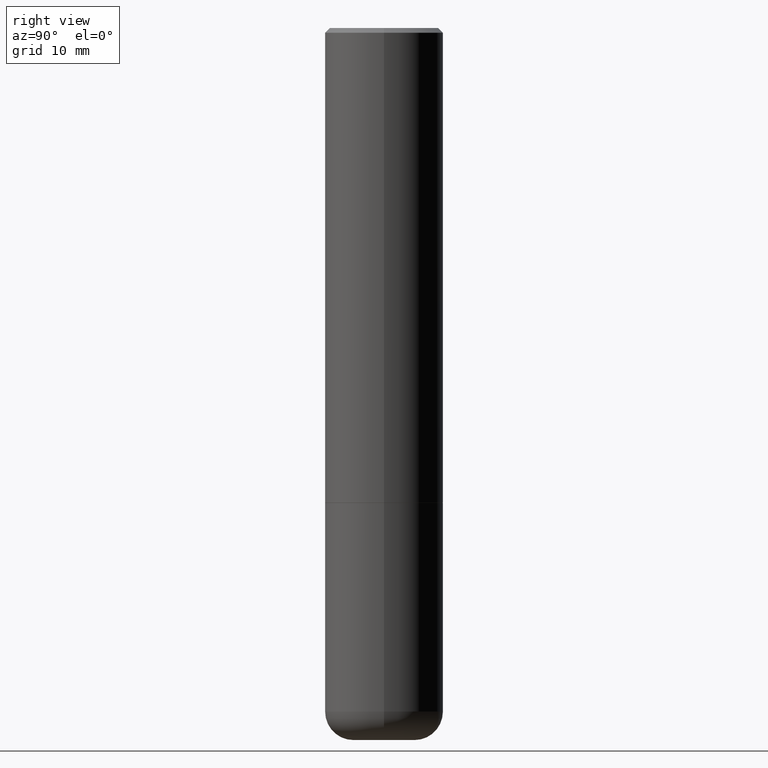
[diagram: clean part render]
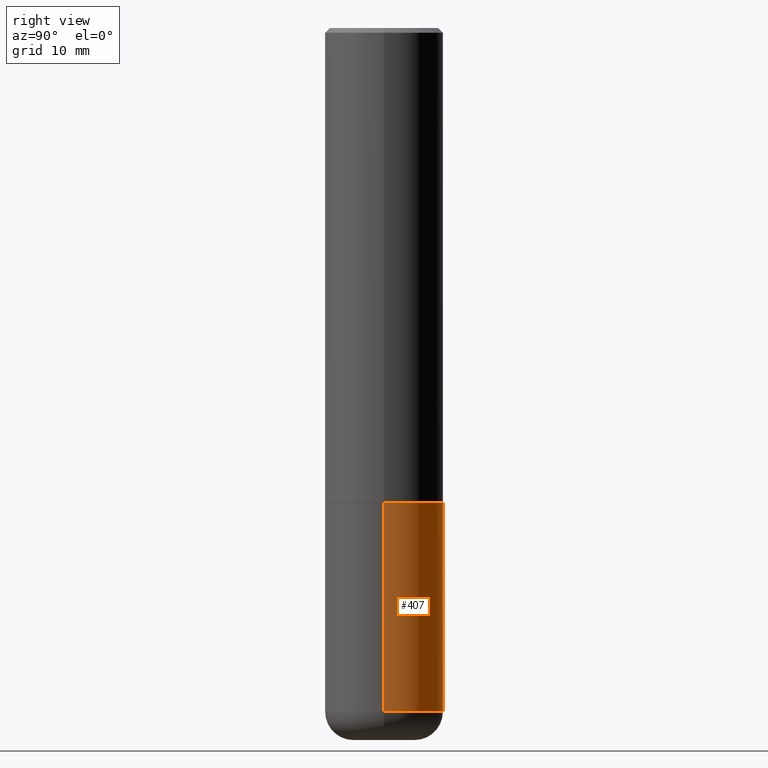
[diagram: same view with one face highlighted and labeled with its STEP entity id]
A machine part, right view. The second image highlights one B-rep face of the part: STEP entity #407.
In plain terms, the highlighted cylindrical surface (partial cylindrical patch) has radius 6.35 mm, axis along (-0, 0, 1).
Its self-contained STEP definition (entity closure, byte-faithful):
#1 = DIRECTION ( 'NONE',  ( -2.445468806185136597E-29, 3.491481338843145583E-15, 1.000000000000000000 ) ) ;
#7 = VERTEX_POINT ( 'NONE', #149 ) ;
#37 = AXIS2_PLACEMENT_3D ( 'NONE', #120, #1, #62 ) ;
#62 = DIRECTION ( 'NONE',  ( 1.000000000000000000, -6.982962677686266711E-15, 0.000000000000000000 ) ) ;
#71 = CARTESIAN_POINT ( 'NONE',  ( 0.2500000000000000000, -8.728703347107858632E-15, -2.000000000000000444 ) ) ;
#72 = ORIENTED_EDGE ( 'NONE', *, *, #360, .T. ) ;
#75 = EDGE_CURVE ( 'NONE', #160, #251, #113, .T. ) ;
#77 = CARTESIAN_POINT ( 'NONE',  ( 0.000000000000000000, 0.000000000000000000, 0.000000000000000000 ) ) ;
#86 = ORIENTED_EDGE ( 'NONE', *, *, #75, .F. ) ;
#105 = DIRECTION ( 'NONE',  ( -2.445468806185136597E-29, 3.491481338843145583E-15, 1.000000000000000000 ) ) ;
#113 = LINE ( 'NONE', #369, #215 ) ;
#120 = CARTESIAN_POINT ( 'NONE',  ( 4.890937612370273754E-29, -6.982962677686291954E-15, -2.000000000000000444 ) ) ;
#134 = CYLINDRICAL_SURFACE ( 'NONE', #228, 0.2500000000000000000 ) ;
#147 = EDGE_CURVE ( 'NONE', #373, #7, #352, .T. ) ;
#149 = CARTESIAN_POINT ( 'NONE',  ( -0.2500000000000000000, -6.742857627377025372E-15, -2.000000000000000444 ) ) ;
#151 = DIRECTION ( 'NONE',  ( -2.445468806185136877E-29, 3.491481338843145188E-15, 1.000000000000000000 ) ) ;
#152 = DIRECTION ( 'NONE',  ( -2.445468806185136877E-29, 3.491481338843145188E-15, 1.000000000000000000 ) ) ;
#154 = CIRCLE ( 'NONE', #37, 0.2500000000000000000 ) ;
#160 = VERTEX_POINT ( 'NONE', #255 ) ;
#190 = CARTESIAN_POINT ( 'NONE',  ( -0.2500000000000000000, 1.776356839400250465E-15, -1.229733772563726445E-29 ) ) ;
#201 = DIRECTION ( 'NONE',  ( 1.000000000000000000, -6.982962677686266711E-15, 4.876176775795935793E-29 ) ) ;
#202 = CIRCLE ( 'NONE', #394, 0.2500000000000000000 ) ;
#215 = VECTOR ( 'NONE', #151, 39.37007874015748143 ) ;
#222 = ORIENTED_EDGE ( 'NONE', *, *, #147, .T. ) ;
#228 = AXIS2_PLACEMENT_3D ( 'NONE', #77, #105, #201 ) ;
#251 = VERTEX_POINT ( 'NONE', #71 ) ;
#255 = CARTESIAN_POINT ( 'NONE',  ( 0.2499999999999999722, -1.180120692528982640E-14, -2.880000000000000338 ) ) ;
#265 = CARTESIAN_POINT ( 'NONE',  ( 7.042950161813194609E-29, -1.005546625586826130E-14, -2.880000000000000338 ) ) ;
#287 = EDGE_CURVE ( 'NONE', #251, #7, #154, .T. ) ;
#291 = VECTOR ( 'NONE', #152, 39.37007874015748143 ) ;
#293 = EDGE_LOOP ( 'NONE', ( #72, #222, #311, #86 ) ) ;
#294 = DIRECTION ( 'NONE',  ( -2.445468806185136597E-29, 3.491481338843145583E-15, 1.000000000000000000 ) ) ;
#311 = ORIENTED_EDGE ( 'NONE', *, *, #287, .F. ) ;
#352 = LINE ( 'NONE', #190, #291 ) ;
#360 = EDGE_CURVE ( 'NONE', #160, #373, #202, .T. ) ;
#363 = FACE_OUTER_BOUND ( 'NONE', #293, .T. ) ;
#369 = CARTESIAN_POINT ( 'NONE',  ( 0.2500000000000000000, -1.745740669421566678E-15, 1.219044193948983948E-29 ) ) ;
#373 = VERTEX_POINT ( 'NONE', #397 ) ;
#394 = AXIS2_PLACEMENT_3D ( 'NONE', #265, #294, #398 ) ;
#397 = CARTESIAN_POINT ( 'NONE',  ( -0.2499999999999999722, -8.279109416468010833E-15, -2.880000000000000338 ) ) ;
#398 = DIRECTION ( 'NONE',  ( 1.000000000000000000, -6.982962677686262766E-15, 0.000000000000000000 ) ) ;
#407 = ADVANCED_FACE ( 'NONE', ( #363 ), #134, .T. ) ;